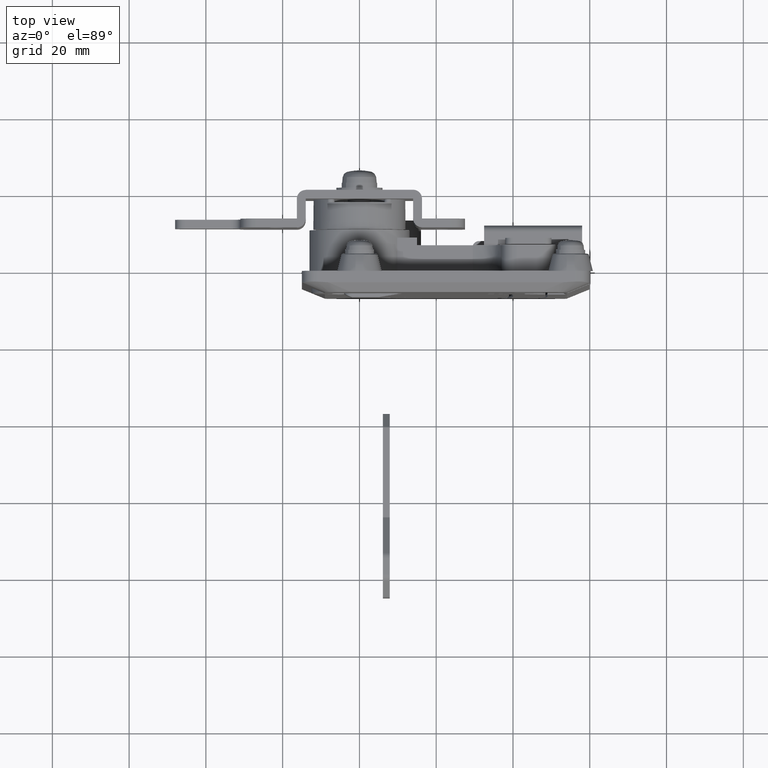
[diagram: clean part render]
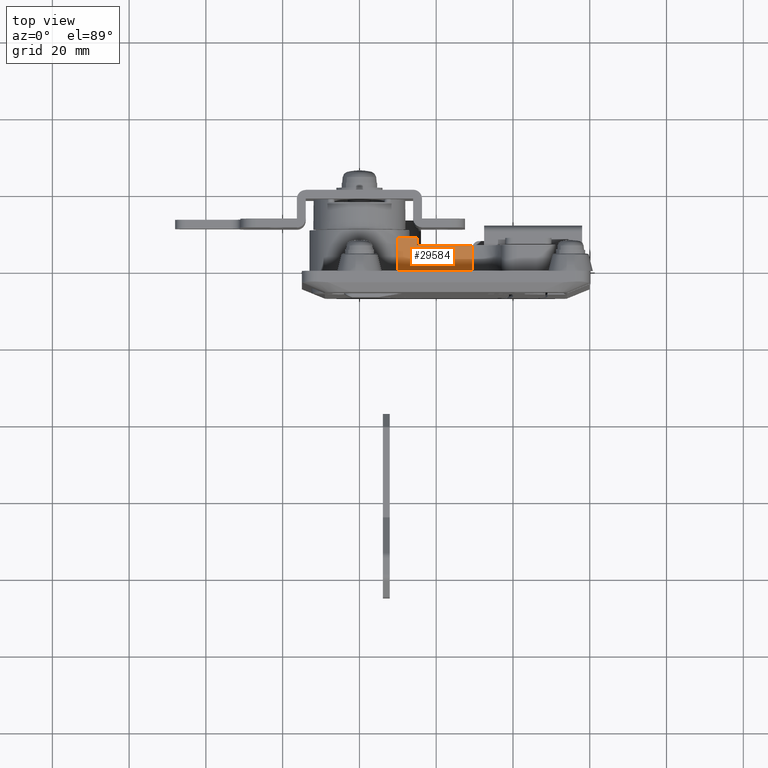
[diagram: same view with one face highlighted and labeled with its STEP entity id]
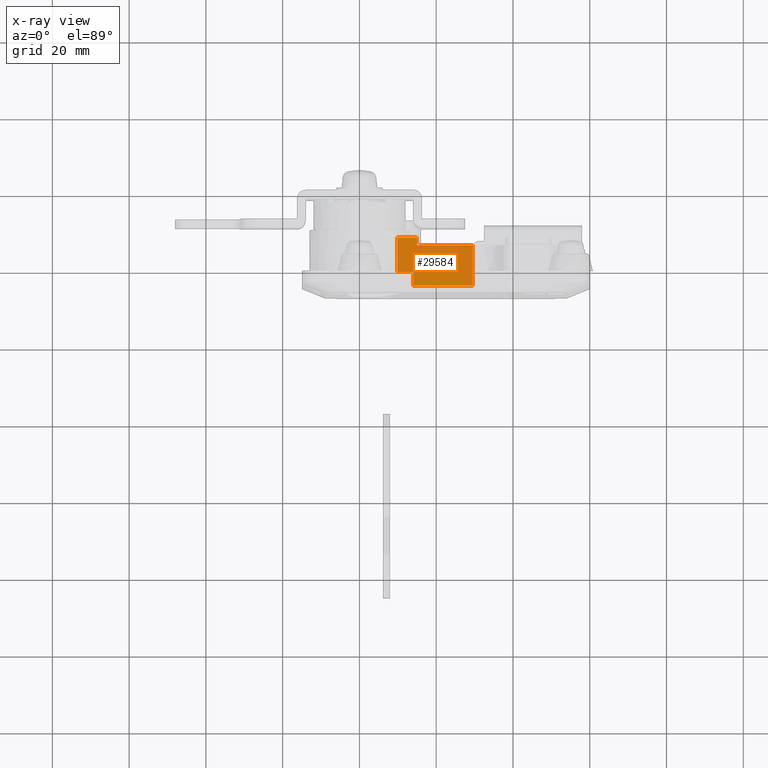
[diagram: x-ray of the same camera — body ghosted, the highlighted face saturated]
A machine part, top view. The second image highlights one B-rep face of the part: STEP entity #29584.
The next image is the same camera in x-ray: the body ghosted, the highlighted face saturated — about 0% of this face is hidden behind the body in this view.
In plain terms, the highlighted face is a freeform B-spline surface patch.
Its self-contained STEP definition (entity closure, byte-faithful):
#24681=CARTESIAN_POINT('',(9.835603473671901,-21.300000000000001,8.500000000000000));
#24682=VERTEX_POINT('',#24681);
#24704=CARTESIAN_POINT('',(9.835603473671901,-12.300000000000001,8.500000000000000));
#24705=VERTEX_POINT('',#24704);
#24706=CARTESIAN_POINT('',(9.835603473671901,-21.300000000000001,8.500000000000000));
#24707=CARTESIAN_POINT('',(9.835603473671901,-12.300000000000001,8.500000000000000));
#24708=QUASI_UNIFORM_CURVE('',1,(#24706,#24707),.UNSPECIFIED.,.F.,.U.);
#24709=EDGE_CURVE('',#24682,#24705,#24708,.T.);
#25171=CARTESIAN_POINT('',(14.000000000004301,-24.800000000000001,8.500000000000000));
#25172=VERTEX_POINT('',#25171);
#25186=CARTESIAN_POINT('',(14.000000000004301,-21.300000000000001,8.500000000000000));
#25187=VERTEX_POINT('',#25186);
#25188=CARTESIAN_POINT('',(14.000000000004301,-21.300000000000001,8.500000000000000));
#25189=CARTESIAN_POINT('',(14.000000000004301,-24.800000000000001,8.500000000000000));
#25190=QUASI_UNIFORM_CURVE('',1,(#25188,#25189),.UNSPECIFIED.,.F.,.U.);
#25191=EDGE_CURVE('',#25187,#25172,#25190,.T.);
#25421=CARTESIAN_POINT('',(29.543817316124951,-24.800000000000001,8.500000000000000));
#25422=VERTEX_POINT('',#25421);
#25423=CARTESIAN_POINT('',(14.000000000004301,-24.800000000000001,8.500000000000000));
#25424=CARTESIAN_POINT('',(29.543817316124951,-24.800000000000001,8.500000000000000));
#25425=QUASI_UNIFORM_CURVE('',1,(#25423,#25424),.UNSPECIFIED.,.F.,.U.);
#25426=EDGE_CURVE('',#25172,#25422,#25425,.T.);
#25715=CARTESIAN_POINT('',(15.0,-12.300000000000001,8.500000000000000));
#25716=VERTEX_POINT('',#25715);
#25717=CARTESIAN_POINT('',(15.0,-12.300000000000001,8.500000000000000));
#25718=CARTESIAN_POINT('',(9.835603473671901,-12.300000000000001,8.500000000000000));
#25719=QUASI_UNIFORM_CURVE('',1,(#25717,#25718),.UNSPECIFIED.,.F.,.U.);
#25720=EDGE_CURVE('',#25716,#24705,#25719,.T.);
#25744=CARTESIAN_POINT('',(15.0,-14.300000000000001,8.500000000000000));
#25745=VERTEX_POINT('',#25744);
#25757=CARTESIAN_POINT('',(15.0,-12.300000000000001,8.500000000000000));
#25758=CARTESIAN_POINT('',(15.0,-14.300000000000001,8.500000000000000));
#25759=QUASI_UNIFORM_CURVE('',1,(#25757,#25758),.UNSPECIFIED.,.F.,.U.);
#25760=EDGE_CURVE('',#25716,#25745,#25759,.T.);
#29520=CARTESIAN_POINT('',(29.544000000000000,-14.300000000000001,8.500000000000000));
#29521=VERTEX_POINT('',#29520);
#29535=CARTESIAN_POINT('',(29.543908658062481,-21.300000000000001,8.500000000000000));
#29536=VERTEX_POINT('',#29535);
#29537=CARTESIAN_POINT('',(29.543908658062481,-21.300000000000001,8.500000000000000));
#29538=CARTESIAN_POINT('',(29.544000000000000,-14.300000000000001,8.500000000000000));
#29539=QUASI_UNIFORM_CURVE('',1,(#29537,#29538),.UNSPECIFIED.,.F.,.U.);
#29540=EDGE_CURVE('',#29536,#29521,#29539,.T.);
#29542=CARTESIAN_POINT('',(29.543817316124951,-24.800000000000001,8.500000000000000));
#29543=CARTESIAN_POINT('',(29.543908658062481,-21.300000000000001,8.500000000000000));
#29544=QUASI_UNIFORM_CURVE('',1,(#29542,#29543),.UNSPECIFIED.,.F.,.U.);
#29545=EDGE_CURVE('',#25422,#29536,#29544,.T.);
#29560=CARTESIAN_POINT('',(8.851169290388835,-25.424374227067460,8.500000000000000));
#29561=CARTESIAN_POINT('',(30.528434888110251,-25.424374227067460,8.500000000000000));
#29562=CARTESIAN_POINT('',(8.851169290388835,-11.675625661173830,8.500000000000000));
#29563=CARTESIAN_POINT('',(30.528434888110251,-11.675625661173830,8.500000000000000));
#29564=B_SPLINE_SURFACE_WITH_KNOTS('',1,1,((#29560,#29562),(#29561,#29563)),.UNSPECIFIED.,.F.,.F.,.U.,(2,2),(2,2),(0.0,21.677265597721409),(0.0,13.748748565893630),.UNSPECIFIED.);
#29565=CARTESIAN_POINT('',(9.835603473671901,-21.300000000000001,8.500000000000000));
#29566=CARTESIAN_POINT('',(14.000000000004301,-21.300000000000001,8.500000000000000));
#29567=QUASI_UNIFORM_CURVE('',1,(#29565,#29566),.UNSPECIFIED.,.F.,.U.);
#29568=EDGE_CURVE('',#24682,#25187,#29567,.T.);
#29569=ORIENTED_EDGE('',*,*,#29568,.T.);
#29570=ORIENTED_EDGE('',*,*,#25191,.T.);
#29571=ORIENTED_EDGE('',*,*,#25426,.T.);
#29572=ORIENTED_EDGE('',*,*,#29545,.T.);
#29573=ORIENTED_EDGE('',*,*,#29540,.T.);
#29574=CARTESIAN_POINT('',(15.0,-14.300000000000001,8.500000000000000));
#29575=CARTESIAN_POINT('',(29.544000000000000,-14.300000000000001,8.500000000000000));
#29576=QUASI_UNIFORM_CURVE('',1,(#29574,#29575),.UNSPECIFIED.,.F.,.U.);
#29577=EDGE_CURVE('',#25745,#29521,#29576,.T.);
#29578=ORIENTED_EDGE('',*,*,#29577,.F.);
#29579=ORIENTED_EDGE('',*,*,#25760,.F.);
#29580=ORIENTED_EDGE('',*,*,#25720,.T.);
#29581=ORIENTED_EDGE('',*,*,#24709,.F.);
#29582=EDGE_LOOP('',(#29569,#29570,#29571,#29572,#29573,#29578,#29579,#29580,#29581));
#29583=FACE_OUTER_BOUND('',#29582,.T.);
#29584=ADVANCED_FACE('',(#29583),#29564,.T.);